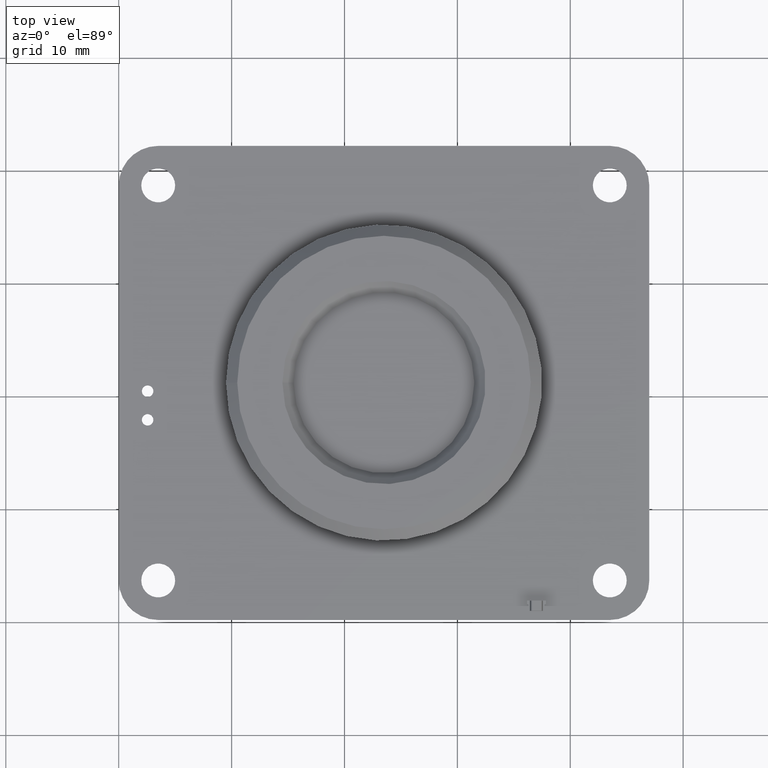
[diagram: clean part render]
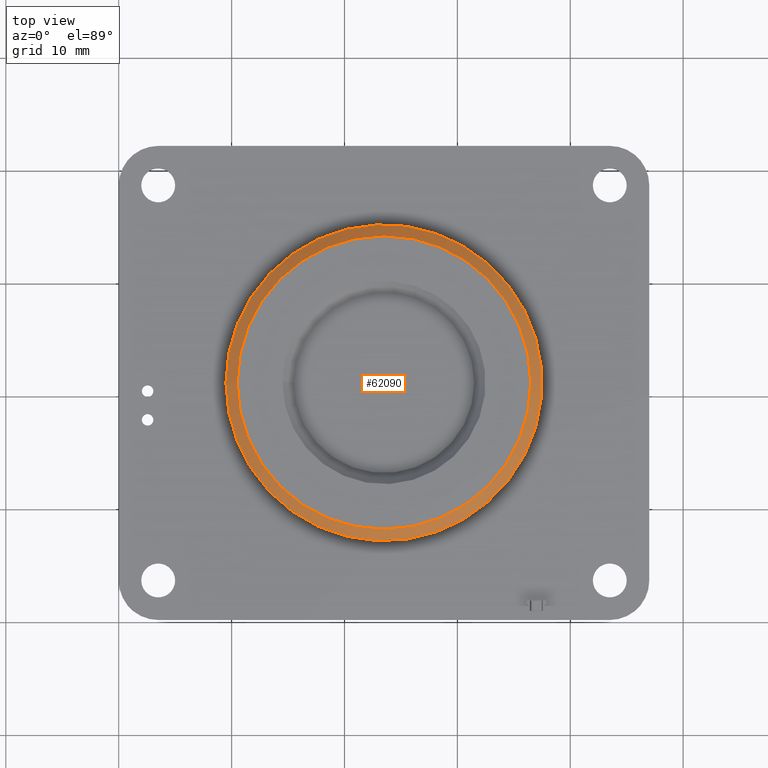
[diagram: same view with one face highlighted and labeled with its STEP entity id]
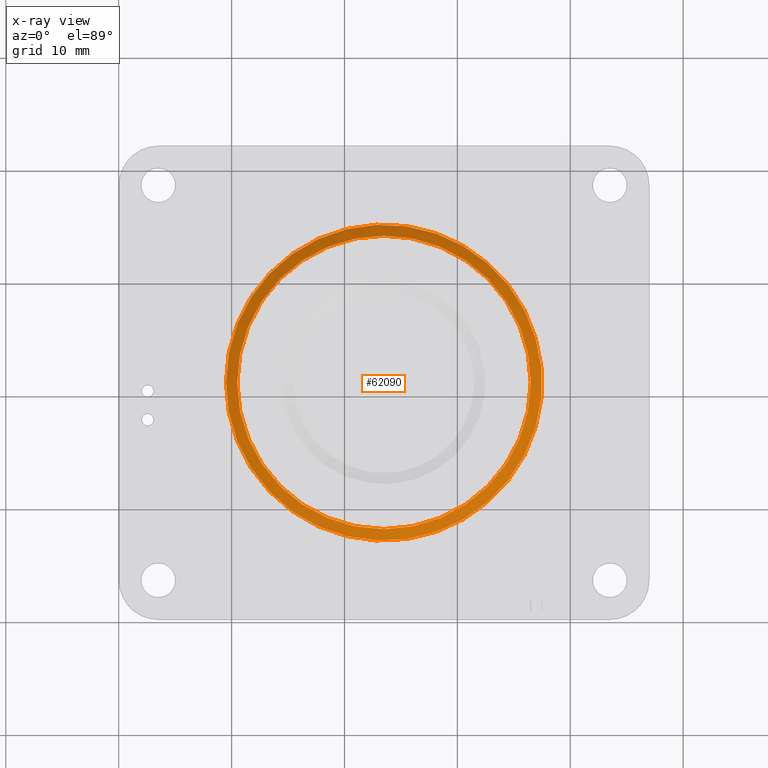
[diagram: x-ray of the same camera — body ghosted, the highlighted face saturated]
A machine part, top view. The second image highlights one B-rep face of the part: STEP entity #62090.
The next image is the same camera in x-ray: the body ghosted, the highlighted face saturated — about 0% of this face is hidden behind the body in this view.
In plain terms, the highlighted conical surface has half-angle 45 deg.
Its self-contained STEP definition (entity closure, byte-faithful):
#62090 = ADVANCED_FACE('',(#62091),#62118,.T.);
#62091 = FACE_BOUND('',#62092,.T.);
#62092 = EDGE_LOOP('',(#62093,#62102,#62110,#62117));
#62093 = ORIENTED_EDGE('',*,*,#62094,.T.);
#62094 = EDGE_CURVE('',#62095,#62095,#62097,.T.);
#62095 = VERTEX_POINT('',#62096);
#62096 = CARTESIAN_POINT('',(13.,15.,1.592040838892E-15));
#62097 = CIRCLE('',#62098,13.);
#62098 = AXIS2_PLACEMENT_3D('',#62099,#62100,#62101);
#62099 = CARTESIAN_POINT('',(0.,15.,0.));
#62100 = DIRECTION('',(0.,-1.,0.));
#62101 = DIRECTION('',(-1.,0.,0.));
#62102 = ORIENTED_EDGE('',*,*,#62103,.T.);
#62103 = EDGE_CURVE('',#62095,#62104,#62106,.T.);
#62104 = VERTEX_POINT('',#62105);
#62105 = CARTESIAN_POINT('',(14.,14.,-1.714505518806E-15));
#62106 = LINE('',#62107,#62108);
#62107 = CARTESIAN_POINT('',(13.5,14.5,-1.653273178849E-15));
#62108 = VECTOR('',#62109,1.);
#62109 = DIRECTION('',(0.707106781187,-0.707106781187,
    -8.659560562355E-17));
#62110 = ORIENTED_EDGE('',*,*,#62111,.T.);
#62111 = EDGE_CURVE('',#62104,#62104,#62112,.T.);
#62112 = CIRCLE('',#62113,14.);
#62113 = AXIS2_PLACEMENT_3D('',#62114,#62115,#62116);
#62114 = CARTESIAN_POINT('',(0.,14.,0.));
#62115 = DIRECTION('',(0.,1.,0.));
#62116 = DIRECTION('',(-1.,0.,0.));
#62117 = ORIENTED_EDGE('',*,*,#62103,.F.);
#62118 = CONICAL_SURFACE('',#62119,13.5,0.785398163397);
#62119 = AXIS2_PLACEMENT_3D('',#62120,#62121,#62122);
#62120 = CARTESIAN_POINT('',(0.,14.5,0.));
#62121 = DIRECTION('',(0.,-1.,0.));
#62122 = DIRECTION('',(-1.,0.,0.));